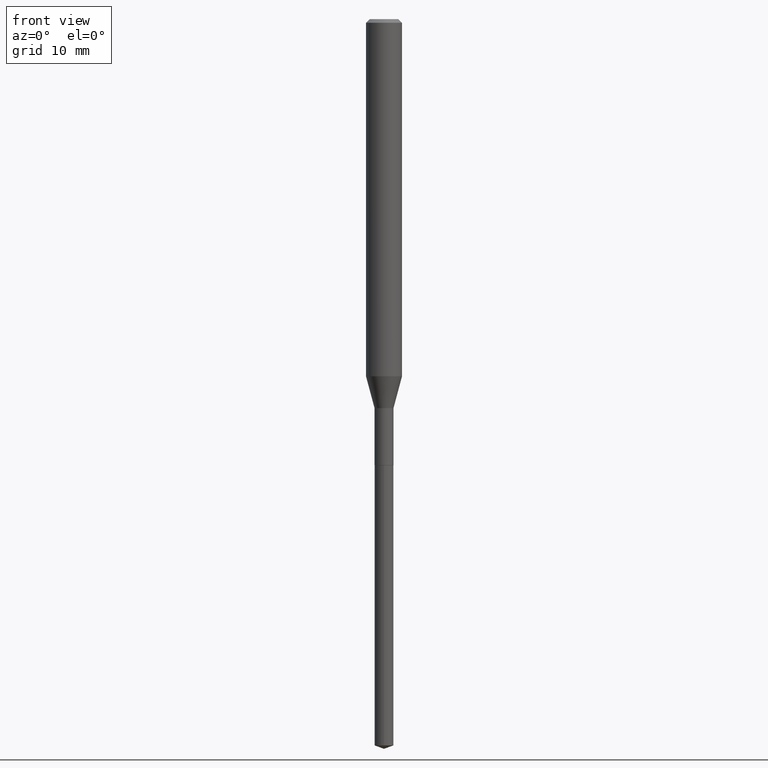
[diagram: clean part render]
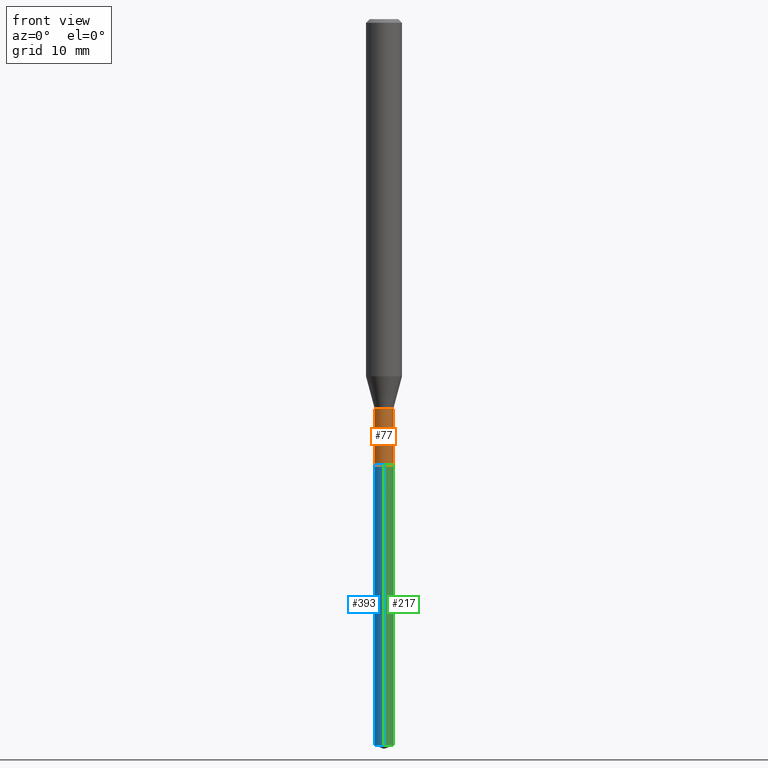
[diagram: same view with three faces highlighted in distinct colors, each labeled with its STEP entity id]
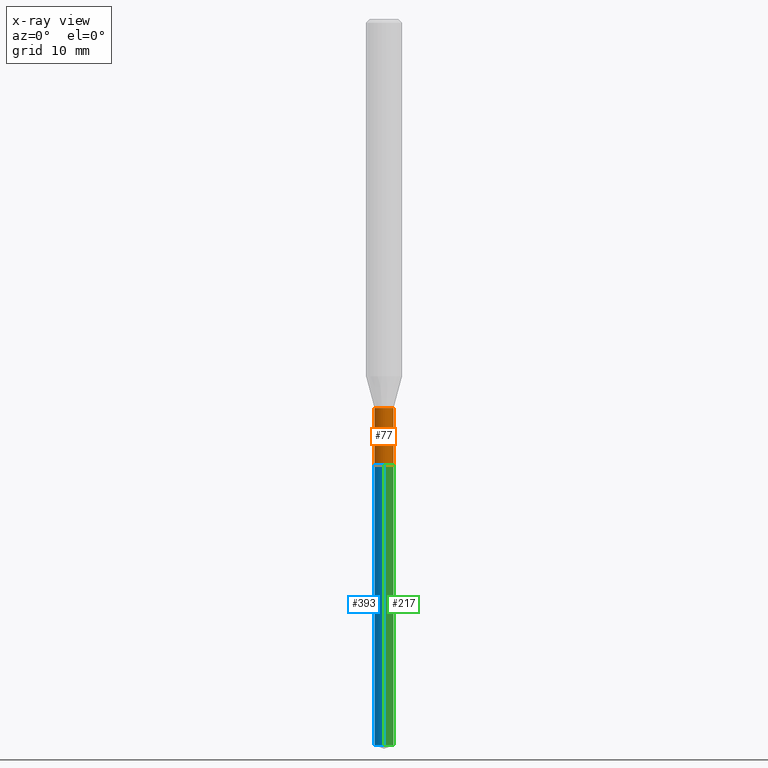
[diagram: x-ray of the same camera — body ghosted, the three highlighted faces saturated]
A machine part, front view with three faces highlighted in distinct colors.
The next image is the same camera in x-ray (body ghosted, the three faces saturated) — at least one of them is partly hidden behind the body in this view.
Their STEP definitions:

[orange] entity #77 — the highlighted cylindrical surface (edge-blend (fillet) strip) has radius 1.0503 mm, axis along (-0, 0, 1).
#1 = ORIENTED_EDGE ( 'NONE', *, *, #486, .T. ) ;
#4 = ORIENTED_EDGE ( 'NONE', *, *, #266, .T. ) ;
#10 = DIRECTION ( 'NONE',  ( 1.000000000000000000, -6.982962677686255667E-15, 0.000000000000000000 ) ) ;
#17 = AXIS2_PLACEMENT_3D ( 'NONE', #294, #300, #383 ) ;
#19 = AXIS2_PLACEMENT_3D ( 'NONE', #83, #225, #10 ) ;
#23 = VECTOR ( 'NONE', #175, 39.37007874015748143 ) ;
#27 = LINE ( 'NONE', #249, #23 ) ;
#73 = CARTESIAN_POINT ( 'NONE',  ( 0.04134999999999997011, -2.887455067223269455E-16, 2.016299096791618234E-30 ) ) ;
#77 = ADVANCED_FACE ( 'NONE', ( #487 ), #370, .T. ) ;
#82 = CIRCLE ( 'NONE', #19, 0.04134999999999996317 ) ;
#83 = CARTESIAN_POINT ( 'NONE',  ( 4.157786064275970008E-29, -5.936216572301117394E-15, -1.700200000000000378 ) ) ;
#87 = VERTEX_POINT ( 'NONE', #220 ) ;
#113 = DIRECTION ( 'NONE',  ( 1.000000000000000000, -6.982962677686275388E-15, 0.000000000000000000 ) ) ;
#117 = CARTESIAN_POINT ( 'NONE',  ( -0.04134999999999996317, -6.075525411147807978E-15, -1.700200000000000378 ) ) ;
#147 = EDGE_LOOP ( 'NONE', ( #454, #1, #4, #189 ) ) ;
#175 = DIRECTION ( 'NONE',  ( -2.445468806185136877E-29, 3.491481338843145188E-15, 1.000000000000000000 ) ) ;
#189 = ORIENTED_EDGE ( 'NONE', *, *, #429, .F. ) ;
#220 = CARTESIAN_POINT ( 'NONE',  ( 0.04134999999999998399, -7.091198599190429120E-15, -1.948300000000000365 ) ) ;
#225 = DIRECTION ( 'NONE',  ( -2.445468806185136597E-29, 3.491481338843145583E-15, 1.000000000000000000 ) ) ;
#230 = EDGE_CURVE ( 'NONE', #231, #244, #27, .T. ) ;
#231 = VERTEX_POINT ( 'NONE', #399 ) ;
#244 = VERTEX_POINT ( 'NONE', #117 ) ;
#249 = CARTESIAN_POINT ( 'NONE',  ( -0.04134999999999997011, 2.938094212368012145E-16, -2.033979659820402051E-30 ) ) ;
#266 = EDGE_CURVE ( 'NONE', #87, #385, #489, .T. ) ;
#289 = AXIS2_PLACEMENT_3D ( 'NONE', #446, #408, #113 ) ;
#294 = CARTESIAN_POINT ( 'NONE',  ( 0.000000000000000000, 0.000000000000000000, 0.000000000000000000 ) ) ;
#300 = DIRECTION ( 'NONE',  ( -2.445468806185136597E-29, 3.491481338843145583E-15, 1.000000000000000000 ) ) ;
#334 = DIRECTION ( 'NONE',  ( -2.445468806185136877E-29, 3.491481338843145188E-15, 1.000000000000000000 ) ) ;
#357 = CARTESIAN_POINT ( 'NONE',  ( 0.04134999999999996317, -6.224962079023443550E-15, -1.700200000000000378 ) ) ;
#370 = CYLINDRICAL_SURFACE ( 'NONE', #17, 0.04134999999999997011 ) ;
#383 = DIRECTION ( 'NONE',  ( 1.000000000000000000, -6.982962677686267499E-15, 4.876176775795936353E-29 ) ) ;
#385 = VERTEX_POINT ( 'NONE', #357 ) ;
#399 = CARTESIAN_POINT ( 'NONE',  ( -0.04134999999999998399, -6.075525411147807978E-15, -1.948300000000000365 ) ) ;
#408 = DIRECTION ( 'NONE',  ( -2.445468806185136597E-29, 3.491481338843145583E-15, 1.000000000000000000 ) ) ;
#425 = VECTOR ( 'NONE', #334, 39.37007874015748143 ) ;
#426 = CIRCLE ( 'NONE', #289, 0.04134999999999998399 ) ;
#429 = EDGE_CURVE ( 'NONE', #244, #385, #82, .T. ) ;
#446 = CARTESIAN_POINT ( 'NONE',  ( 4.764506875090502296E-29, -6.802453092468101385E-15, -1.948300000000000365 ) ) ;
#454 = ORIENTED_EDGE ( 'NONE', *, *, #230, .F. ) ;
#486 = EDGE_CURVE ( 'NONE', #231, #87, #426, .T. ) ;
#487 = FACE_OUTER_BOUND ( 'NONE', #147, .T. ) ;
#489 = LINE ( 'NONE', #73, #425 ) ;

[blue] entity #393 — the highlighted cylindrical surface (edge-blend (fillet) strip) has radius 1.0503 mm, axis along (-0, 0, 1).
#22 = CYLINDRICAL_SURFACE ( 'NONE', #453, 0.04134999999999999787 ) ;
#28 = ORIENTED_EDGE ( 'NONE', *, *, #180, .F. ) ;
#43 = DIRECTION ( 'NONE',  ( -6.982962677686265922E-15, -1.000000000000000000, 0.000000000000000000 ) ) ;
#46 = CARTESIAN_POINT ( 'NONE',  ( -2.887455067222493906E-16, -0.04135000000001107234, -3.173949830813093342 ) ) ;
#65 = CARTESIAN_POINT ( 'NONE',  ( -2.887455067222794166E-16, -0.04135000000000680492, -1.948800000000000088 ) ) ;
#70 = VERTEX_POINT ( 'NONE', #298 ) ;
#80 = VERTEX_POINT ( 'NONE', #46 ) ;
#98 = DIRECTION ( 'NONE',  ( -2.445493315655774085E-29, 3.491446239886199963E-15, 1.000000000000000000 ) ) ;
#107 = DIRECTION ( 'NONE',  ( -2.445493315655774085E-29, 3.491446239886199963E-15, 1.000000000000000000 ) ) ;
#140 = CARTESIAN_POINT ( 'NONE',  ( 4.765729609493595098E-29, -6.804198833137522889E-15, -1.948800000000000310 ) ) ;
#141 = CARTESIAN_POINT ( 'NONE',  ( 4.765729609493595098E-29, -6.804198833137522889E-15, -1.948800000000000310 ) ) ;
#166 = VECTOR ( 'NONE', #107, 39.37007874015748143 ) ;
#170 = LINE ( 'NONE', #396, #166 ) ;
#177 = DIRECTION ( 'NONE',  ( -2.445493315655774366E-29, 3.491446239886199963E-15, 1.000000000000000000 ) ) ;
#178 = VERTEX_POINT ( 'NONE', #65 ) ;
#180 = EDGE_CURVE ( 'NONE', #368, #70, #170, .T. ) ;
#182 = EDGE_CURVE ( 'NONE', #80, #178, #358, .T. ) ;
#206 = FACE_OUTER_BOUND ( 'NONE', #400, .T. ) ;
#215 = EDGE_CURVE ( 'NONE', #70, #178, #251, .T. ) ;
#228 = DIRECTION ( 'NONE',  ( -2.445493315655774366E-29, 3.491446239886199963E-15, 1.000000000000000000 ) ) ;
#233 = AXIS2_PLACEMENT_3D ( 'NONE', #140, #177, #481 ) ;
#251 = CIRCLE ( 'NONE', #233, 0.04134999999999999787 ) ;
#298 = CARTESIAN_POINT ( 'NONE',  ( 2.938094212368791638E-16, 0.04134999999999319775, -1.948800000000000532 ) ) ;
#308 = ORIENTED_EDGE ( 'NONE', *, *, #215, .F. ) ;
#325 = ORIENTED_EDGE ( 'NONE', *, *, #466, .T. ) ;
#338 = AXIS2_PLACEMENT_3D ( 'NONE', #344, #228, #43 ) ;
#344 = CARTESIAN_POINT ( 'NONE',  ( 7.761825331423815897E-29, -1.108174360322711029E-14, -3.173949830813093342 ) ) ;
#352 = CARTESIAN_POINT ( 'NONE',  ( 2.938094212368789666E-16, 0.04134999999998890952, -3.173949830813093342 ) ) ;
#358 = LINE ( 'NONE', #434, #432 ) ;
#368 = VERTEX_POINT ( 'NONE', #352 ) ;
#374 = CIRCLE ( 'NONE', #338, 0.04134999999999999787 ) ;
#393 = ADVANCED_FACE ( 'NONE', ( #206 ), #22, .T. ) ;
#396 = CARTESIAN_POINT ( 'NONE',  ( 2.938094212368490392E-16, 0.04134999999999319775, -1.948800000000000532 ) ) ;
#397 = DIRECTION ( 'NONE',  ( -6.982962677686265922E-15, -1.000000000000000000, 6.606645692053841341E-15 ) ) ;
#400 = EDGE_LOOP ( 'NONE', ( #28, #325, #411, #308 ) ) ;
#411 = ORIENTED_EDGE ( 'NONE', *, *, #182, .T. ) ;
#432 = VECTOR ( 'NONE', #98, 39.37007874015748143 ) ;
#434 = CARTESIAN_POINT ( 'NONE',  ( -2.887455067222794166E-16, -0.04135000000000680492, -1.948800000000000088 ) ) ;
#453 = AXIS2_PLACEMENT_3D ( 'NONE', #141, #479, #397 ) ;
#466 = EDGE_CURVE ( 'NONE', #368, #80, #374, .T. ) ;
#479 = DIRECTION ( 'NONE',  ( -2.445493315655774366E-29, 3.491446239886199963E-15, 1.000000000000000000 ) ) ;
#481 = DIRECTION ( 'NONE',  ( -6.982962677686265922E-15, -1.000000000000000000, 6.606645692053841341E-15 ) ) ;

[green] entity #217 — the highlighted cylindrical surface (edge-blend (fillet) strip) has radius 1.0503 mm, axis along (-0, 0, 1).
#13 = EDGE_CURVE ( 'NONE', #178, #70, #200, .T. ) ;
#46 = CARTESIAN_POINT ( 'NONE',  ( -2.887455067222493906E-16, -0.04135000000001107234, -3.173949830813093342 ) ) ;
#62 = DIRECTION ( 'NONE',  ( -2.445493315655774366E-29, 3.491446239886199963E-15, 1.000000000000000000 ) ) ;
#65 = CARTESIAN_POINT ( 'NONE',  ( -2.887455067222794166E-16, -0.04135000000000680492, -1.948800000000000088 ) ) ;
#70 = VERTEX_POINT ( 'NONE', #298 ) ;
#80 = VERTEX_POINT ( 'NONE', #46 ) ;
#98 = DIRECTION ( 'NONE',  ( -2.445493315655774085E-29, 3.491446239886199963E-15, 1.000000000000000000 ) ) ;
#100 = DIRECTION ( 'NONE',  ( -6.982962677686265922E-15, -1.000000000000000000, 6.606645692053841341E-15 ) ) ;
#103 = EDGE_LOOP ( 'NONE', ( #378, #439, #458, #444 ) ) ;
#107 = DIRECTION ( 'NONE',  ( -2.445493315655774085E-29, 3.491446239886199963E-15, 1.000000000000000000 ) ) ;
#130 = AXIS2_PLACEMENT_3D ( 'NONE', #317, #235, #100 ) ;
#158 = AXIS2_PLACEMENT_3D ( 'NONE', #482, #281, #437 ) ;
#166 = VECTOR ( 'NONE', #107, 39.37007874015748143 ) ;
#170 = LINE ( 'NONE', #396, #166 ) ;
#178 = VERTEX_POINT ( 'NONE', #65 ) ;
#180 = EDGE_CURVE ( 'NONE', #368, #70, #170, .T. ) ;
#182 = EDGE_CURVE ( 'NONE', #80, #178, #358, .T. ) ;
#200 = CIRCLE ( 'NONE', #130, 0.04134999999999999787 ) ;
#217 = ADVANCED_FACE ( 'NONE', ( #284 ), #365, .T. ) ;
#235 = DIRECTION ( 'NONE',  ( -2.445493315655774366E-29, 3.491446239886199963E-15, 1.000000000000000000 ) ) ;
#281 = DIRECTION ( 'NONE',  ( -2.445493315655774366E-29, 3.491446239886199963E-15, 1.000000000000000000 ) ) ;
#282 = DIRECTION ( 'NONE',  ( -6.982962677686265922E-15, -1.000000000000000000, 0.000000000000000000 ) ) ;
#284 = FACE_OUTER_BOUND ( 'NONE', #103, .T. ) ;
#298 = CARTESIAN_POINT ( 'NONE',  ( 2.938094212368791638E-16, 0.04134999999999319775, -1.948800000000000532 ) ) ;
#317 = CARTESIAN_POINT ( 'NONE',  ( 4.765729609493595098E-29, -6.804198833137522889E-15, -1.948800000000000310 ) ) ;
#352 = CARTESIAN_POINT ( 'NONE',  ( 2.938094212368789666E-16, 0.04134999999998890952, -3.173949830813093342 ) ) ;
#358 = LINE ( 'NONE', #434, #432 ) ;
#365 = CYLINDRICAL_SURFACE ( 'NONE', #158, 0.04134999999999999787 ) ;
#367 = CIRCLE ( 'NONE', #448, 0.04134999999999999787 ) ;
#368 = VERTEX_POINT ( 'NONE', #352 ) ;
#377 = EDGE_CURVE ( 'NONE', #80, #368, #367, .T. ) ;
#378 = ORIENTED_EDGE ( 'NONE', *, *, #377, .T. ) ;
#391 = CARTESIAN_POINT ( 'NONE',  ( 7.761825331423815897E-29, -1.108174360322711029E-14, -3.173949830813093342 ) ) ;
#396 = CARTESIAN_POINT ( 'NONE',  ( 2.938094212368490392E-16, 0.04134999999999319775, -1.948800000000000532 ) ) ;
#432 = VECTOR ( 'NONE', #98, 39.37007874015748143 ) ;
#434 = CARTESIAN_POINT ( 'NONE',  ( -2.887455067222794166E-16, -0.04135000000000680492, -1.948800000000000088 ) ) ;
#437 = DIRECTION ( 'NONE',  ( -6.982962677686265922E-15, -1.000000000000000000, 6.606645692053841341E-15 ) ) ;
#439 = ORIENTED_EDGE ( 'NONE', *, *, #180, .T. ) ;
#444 = ORIENTED_EDGE ( 'NONE', *, *, #182, .F. ) ;
#448 = AXIS2_PLACEMENT_3D ( 'NONE', #391, #62, #282 ) ;
#458 = ORIENTED_EDGE ( 'NONE', *, *, #13, .F. ) ;
#482 = CARTESIAN_POINT ( 'NONE',  ( 4.765729609493595098E-29, -6.804198833137522889E-15, -1.948800000000000310 ) ) ;